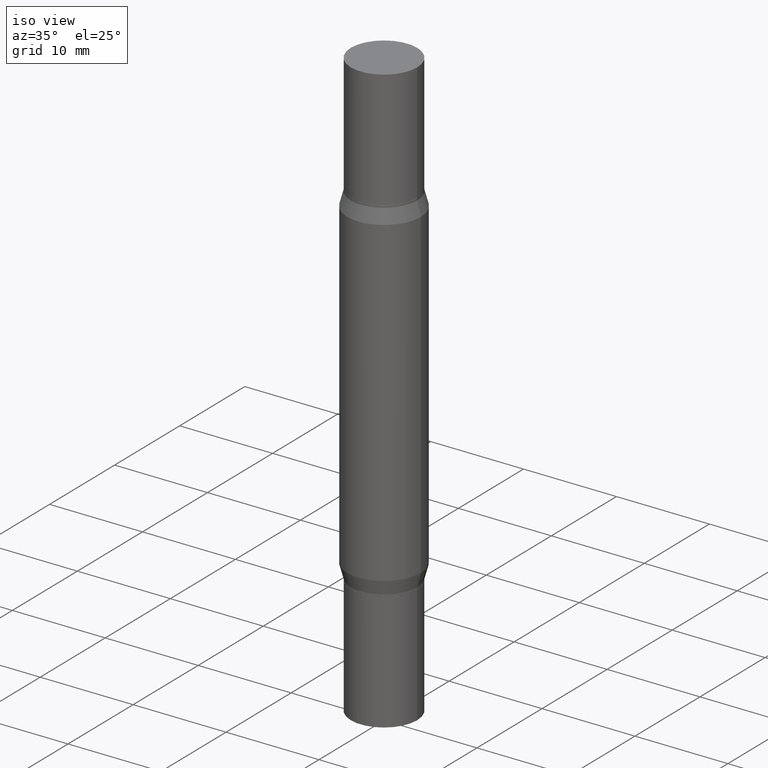
[diagram: clean part render]
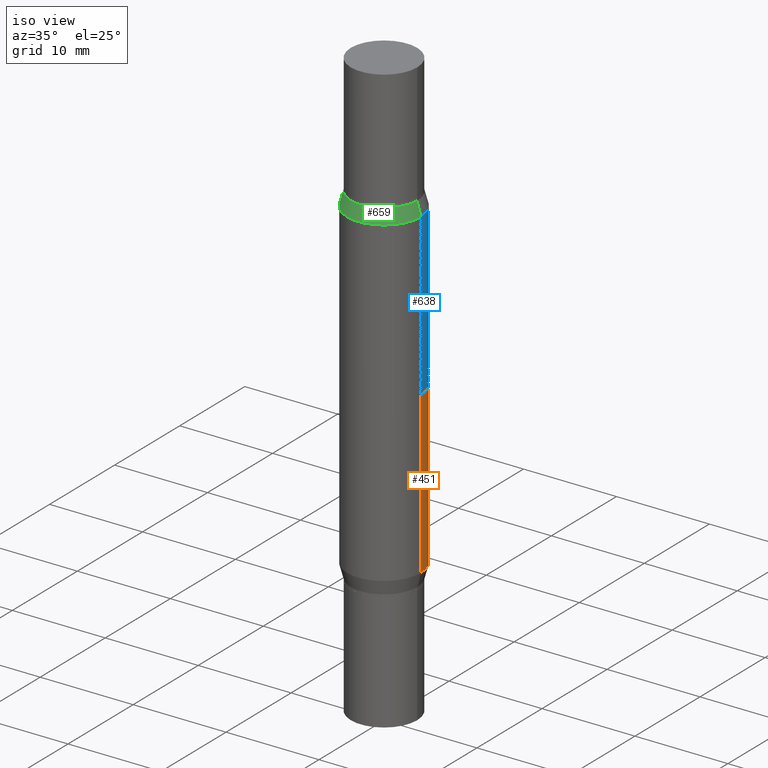
[diagram: same view with three faces highlighted in distinct colors, each labeled with its STEP entity id]
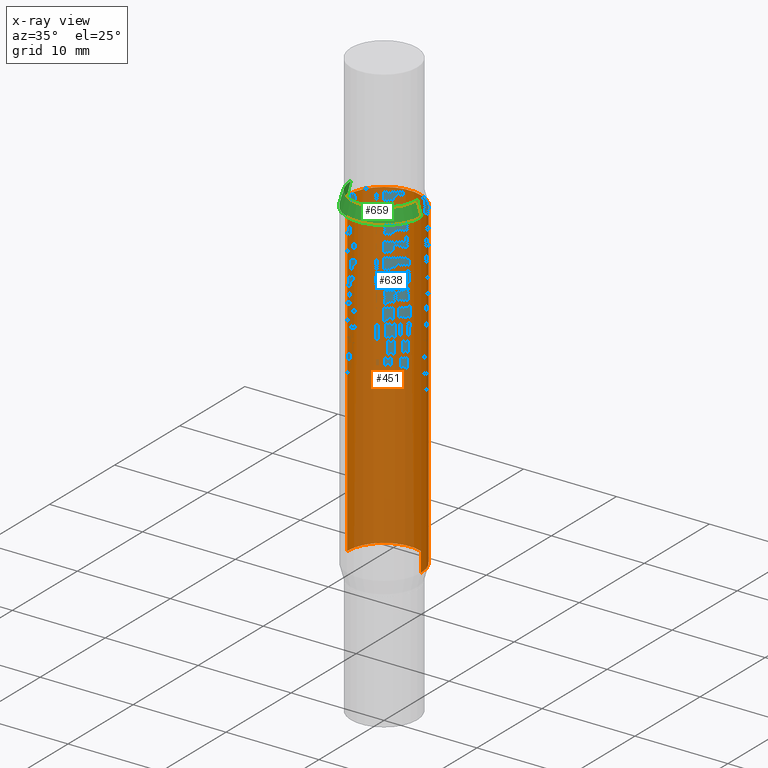
[diagram: x-ray of the same camera — body ghosted, the three highlighted faces saturated]
A machine part, iso view with three faces highlighted in distinct colors.
The next image is the same camera in x-ray (body ghosted, the three faces saturated) — at least one of them is partly hidden behind the body in this view.
Their STEP definitions:

[orange] entity #451 — the highlighted cylindrical surface (partial cylindrical patch) has radius 3.9688 mm, axis along (-0, -0, -1).
#14 = DIRECTION ( 'NONE',  ( 1.000000000000000000, -6.982962677686265133E-15, 0.000000000000000000 ) ) ;
#35 = VERTEX_POINT ( 'NONE', #98 ) ;
#66 = DIRECTION ( 'NONE',  ( -2.445468806185136877E-29, -3.491805094961123683E-15, -1.000000000000000000 ) ) ;
#98 = CARTESIAN_POINT ( 'NONE',  ( 0.1562500000000000000, -3.075448268154960667E-15, -0.5684065951384525972 ) ) ;
#105 = CIRCLE ( 'NONE', #228, 0.1562500000000000000 ) ;
#124 = AXIS2_PLACEMENT_3D ( 'NONE', #854, #567, #252 ) ;
#162 = CARTESIAN_POINT ( 'NONE',  ( 0.1562500000000000000, -7.835210245695063494E-15, -1.931593404861546848 ) ) ;
#164 = VERTEX_POINT ( 'NONE', #859 ) ;
#203 = VECTOR ( 'NONE', #66, 39.37007874015748143 ) ;
#228 = AXIS2_PLACEMENT_3D ( 'NONE', #385, #758, #766 ) ;
#252 = DIRECTION ( 'NONE',  ( 1.000000000000000000, -6.982962677686262766E-15, 0.000000000000000000 ) ) ;
#253 = VERTEX_POINT ( 'NONE', #162 ) ;
#294 = CARTESIAN_POINT ( 'NONE',  ( -0.1562500000000000000, -9.124075376146796868E-16, -0.5684065951384525972 ) ) ;
#301 = EDGE_CURVE ( 'NONE', #253, #164, #105, .T. ) ;
#312 = EDGE_CURVE ( 'NONE', #35, #812, #909, .T. ) ;
#323 = DIRECTION ( 'NONE',  ( 2.445468806185136597E-29, 3.491805094961124077E-15, 1.000000000000000000 ) ) ;
#329 = CYLINDRICAL_SURFACE ( 'NONE', #124, 0.1562500000000000000 ) ;
#330 = EDGE_LOOP ( 'NONE', ( #437, #887, #723, #563 ) ) ;
#339 = EDGE_CURVE ( 'NONE', #35, #253, #698, .T. ) ;
#385 = CARTESIAN_POINT ( 'NONE',  ( 4.723651417821850369E-29, -6.744122327306583531E-15, -1.931593404861546848 ) ) ;
#437 = ORIENTED_EDGE ( 'NONE', *, *, #819, .F. ) ;
#451 = ADVANCED_FACE ( 'NONE', ( #481 ), #329, .T. ) ;
#481 = FACE_OUTER_BOUND ( 'NONE', #330, .T. ) ;
#563 = ORIENTED_EDGE ( 'NONE', *, *, #301, .T. ) ;
#567 = DIRECTION ( 'NONE',  ( -2.445468806185136597E-29, -3.491805094961124077E-15, -1.000000000000000000 ) ) ;
#568 = VECTOR ( 'NONE', #917, 39.37007874015748143 ) ;
#599 = CARTESIAN_POINT ( 'NONE',  ( -0.1562500000000000000, -7.657155230103533296E-15, -2.499999999999999556 ) ) ;
#625 = CARTESIAN_POINT ( 'NONE',  ( 0.1562500000000000000, -9.820195960643813487E-15, -2.499999999999999556 ) ) ;
#698 = LINE ( 'NONE', #625, #568 ) ;
#723 = ORIENTED_EDGE ( 'NONE', *, *, #339, .T. ) ;
#747 = LINE ( 'NONE', #599, #203 ) ;
#758 = DIRECTION ( 'NONE',  ( -2.445468806185136597E-29, 3.491481338843145583E-15, 1.000000000000000000 ) ) ;
#766 = DIRECTION ( 'NONE',  ( 1.000000000000000000, -6.982962677686269077E-15, 0.000000000000000000 ) ) ;
#812 = VERTEX_POINT ( 'NONE', #294 ) ;
#819 = EDGE_CURVE ( 'NONE', #812, #164, #747, .T. ) ;
#832 = CARTESIAN_POINT ( 'NONE',  ( 4.723651417821850369E-29, -1.984360349766479521E-15, -0.5684065951384525972 ) ) ;
#854 = CARTESIAN_POINT ( 'NONE',  ( 0.000000000000000000, -8.729108042255335103E-15, -2.499999999999999556 ) ) ;
#859 = CARTESIAN_POINT ( 'NONE',  ( -0.1562500000000000000, -3.292398861402129087E-15, -1.931593404861546848 ) ) ;
#860 = AXIS2_PLACEMENT_3D ( 'NONE', #832, #323, #14 ) ;
#887 = ORIENTED_EDGE ( 'NONE', *, *, #312, .F. ) ;
#909 = CIRCLE ( 'NONE', #860, 0.1562500000000000000 ) ;
#917 = DIRECTION ( 'NONE',  ( -2.445468806185136877E-29, -3.491805094961123683E-15, -1.000000000000000000 ) ) ;

[blue] entity #638 — the highlighted cylindrical surface (partial cylindrical patch) has radius 3.9688 mm, axis along (-0, -0, -1).
#15 = DIRECTION ( 'NONE',  ( -2.445468806185136597E-29, -3.491805094961124077E-15, -1.000000000000000000 ) ) ;
#89 = CARTESIAN_POINT ( 'NONE',  ( 0.1562500000000000000, -9.820195960643813487E-15, -2.499999999999999556 ) ) ;
#147 = EDGE_LOOP ( 'NONE', ( #969, #349, #881, #761 ) ) ;
#185 = LINE ( 'NONE', #337, #797 ) ;
#190 = VERTEX_POINT ( 'NONE', #672 ) ;
#226 = FACE_OUTER_BOUND ( 'NONE', #147, .T. ) ;
#258 = AXIS2_PLACEMENT_3D ( 'NONE', #430, #775, #786 ) ;
#333 = EDGE_CURVE ( 'NONE', #787, #586, #542, .T. ) ;
#337 = CARTESIAN_POINT ( 'NONE',  ( -0.1562500000000000000, -7.657155230103533296E-15, -2.499999999999999556 ) ) ;
#341 = CIRCLE ( 'NONE', #843, 0.1562500000000000000 ) ;
#349 = ORIENTED_EDGE ( 'NONE', *, *, #505, .F. ) ;
#352 = DIRECTION ( 'NONE',  ( -2.445468806185136877E-29, -3.491805094961123683E-15, -1.000000000000000000 ) ) ;
#372 = EDGE_CURVE ( 'NONE', #190, #939, #185, .T. ) ;
#393 = CIRCLE ( 'NONE', #258, 0.1562500000000000000 ) ;
#394 = DIRECTION ( 'NONE',  ( -2.445468806185136877E-29, -3.491805094961123683E-15, -1.000000000000000000 ) ) ;
#406 = VECTOR ( 'NONE', #394, 39.37007874015748143 ) ;
#414 = EDGE_CURVE ( 'NONE', #939, #586, #393, .T. ) ;
#430 = CARTESIAN_POINT ( 'NONE',  ( 3.056836007731420185E-29, -4.364351673553931682E-15, -1.249999999999999778 ) ) ;
#497 = CARTESIAN_POINT ( 'NONE',  ( 4.723651417821850369E-29, -1.984360349766479521E-15, -0.5684065951384525972 ) ) ;
#505 = EDGE_CURVE ( 'NONE', #787, #190, #341, .T. ) ;
#542 = LINE ( 'NONE', #89, #406 ) ;
#586 = VERTEX_POINT ( 'NONE', #741 ) ;
#620 = CARTESIAN_POINT ( 'NONE',  ( 0.000000000000000000, -8.729108042255335103E-15, -2.499999999999999556 ) ) ;
#628 = DIRECTION ( 'NONE',  ( 1.000000000000000000, -6.982962677686262766E-15, 0.000000000000000000 ) ) ;
#638 = ADVANCED_FACE ( 'NONE', ( #226 ), #845, .T. ) ;
#652 = CARTESIAN_POINT ( 'NONE',  ( 0.1562500000000000000, -3.075448268154960667E-15, -0.5684065951384525972 ) ) ;
#657 = CARTESIAN_POINT ( 'NONE',  ( -0.1562500000000000000, -2.102403199508403006E-15, -1.249999999999999778 ) ) ;
#672 = CARTESIAN_POINT ( 'NONE',  ( -0.1562500000000000000, -9.124075376146796868E-16, -0.5684065951384525972 ) ) ;
#709 = AXIS2_PLACEMENT_3D ( 'NONE', #620, #15, #628 ) ;
#730 = DIRECTION ( 'NONE',  ( 1.000000000000000000, -6.982962677686265133E-15, 0.000000000000000000 ) ) ;
#741 = CARTESIAN_POINT ( 'NONE',  ( 0.1562500000000000000, -4.265443930048683987E-15, -1.249999999999999778 ) ) ;
#761 = ORIENTED_EDGE ( 'NONE', *, *, #414, .F. ) ;
#775 = DIRECTION ( 'NONE',  ( -0.000000000000000000, -3.491643216902134830E-15, -1.000000000000000000 ) ) ;
#786 = DIRECTION ( 'NONE',  ( 0.000000000000000000, 1.000000000000000000, -3.496765431890256920E-15 ) ) ;
#787 = VERTEX_POINT ( 'NONE', #652 ) ;
#791 = DIRECTION ( 'NONE',  ( 2.445468806185136597E-29, 3.491805094961124077E-15, 1.000000000000000000 ) ) ;
#797 = VECTOR ( 'NONE', #352, 39.37007874015748143 ) ;
#843 = AXIS2_PLACEMENT_3D ( 'NONE', #497, #791, #730 ) ;
#845 = CYLINDRICAL_SURFACE ( 'NONE', #709, 0.1562500000000000000 ) ;
#881 = ORIENTED_EDGE ( 'NONE', *, *, #333, .T. ) ;
#939 = VERTEX_POINT ( 'NONE', #657 ) ;
#969 = ORIENTED_EDGE ( 'NONE', *, *, #372, .F. ) ;

[green] entity #659 — the highlighted conical surface has half-angle 15 deg.
#13 = CARTESIAN_POINT ( 'NONE',  ( 4.723651417821850369E-29, -1.984360349766479521E-15, -0.5684065951384525972 ) ) ;
#17 = EDGE_CURVE ( 'NONE', #342, #190, #250, .T. ) ;
#30 = DIRECTION ( 'NONE',  ( 1.000000000000000000, -6.982962677686266711E-15, 0.000000000000000000 ) ) ;
#36 = VECTOR ( 'NONE', #927, 39.37007874015748143 ) ;
#47 = EDGE_CURVE ( 'NONE', #190, #787, #979, .T. ) ;
#155 = CIRCLE ( 'NONE', #551, 0.1405999999999998917 ) ;
#157 = VECTOR ( 'NONE', #206, 39.37007874015748143 ) ;
#168 = DIRECTION ( 'NONE',  ( 1.000000000000000000, -6.982962677686266711E-15, 0.000000000000000000 ) ) ;
#190 = VERTEX_POINT ( 'NONE', #672 ) ;
#206 = DIRECTION ( 'NONE',  ( 0.2588190451025215721, -5.180148453816008779E-15, -0.9659258262890679791 ) ) ;
#237 = DIRECTION ( 'NONE',  ( 2.445468806185136597E-29, 3.491805094961124077E-15, 1.000000000000000000 ) ) ;
#250 = LINE ( 'NONE', #332, #36 ) ;
#311 = AXIS2_PLACEMENT_3D ( 'NONE', #13, #237, #396 ) ;
#332 = CARTESIAN_POINT ( 'NONE',  ( -0.1405999999999998917, -8.158298847960224676E-16, -0.5099999999999994538 ) ) ;
#342 = VERTEX_POINT ( 'NONE', #545 ) ;
#381 = VERTEX_POINT ( 'NONE', #573 ) ;
#396 = DIRECTION ( 'NONE',  ( 1.000000000000000000, -6.982962677686265133E-15, 0.000000000000000000 ) ) ;
#401 = EDGE_CURVE ( 'NONE', #342, #381, #155, .T. ) ;
#472 = DIRECTION ( 'NONE',  ( -2.445468806185136597E-29, -3.491805094961124077E-15, -1.000000000000000000 ) ) ;
#545 = CARTESIAN_POINT ( 'NONE',  ( -0.1405999999999998917, -7.992438105949555922E-16, -0.5099999999999994538 ) ) ;
#551 = AXIS2_PLACEMENT_3D ( 'NONE', #862, #639, #30 ) ;
#573 = CARTESIAN_POINT ( 'NONE',  ( 0.1405999999999998917, -2.762220455765387228E-15, -0.5099999999999994538 ) ) ;
#581 = EDGE_LOOP ( 'NONE', ( #856, #803, #799, #769 ) ) ;
#583 = LINE ( 'NONE', #888, #157 ) ;
#639 = DIRECTION ( 'NONE',  ( 2.445468806185136597E-29, 3.491805094961124077E-15, 1.000000000000000000 ) ) ;
#652 = CARTESIAN_POINT ( 'NONE',  ( 0.1562500000000000000, -3.075448268154960667E-15, -0.5684065951384525972 ) ) ;
#659 = ADVANCED_FACE ( 'NONE', ( #836 ), #883, .T. ) ;
#672 = CARTESIAN_POINT ( 'NONE',  ( -0.1562500000000000000, -9.124075376146796868E-16, -0.5684065951384525972 ) ) ;
#769 = ORIENTED_EDGE ( 'NONE', *, *, #919, .F. ) ;
#787 = VERTEX_POINT ( 'NONE', #652 ) ;
#799 = ORIENTED_EDGE ( 'NONE', *, *, #47, .T. ) ;
#803 = ORIENTED_EDGE ( 'NONE', *, *, #17, .T. ) ;
#836 = FACE_OUTER_BOUND ( 'NONE', #581, .T. ) ;
#856 = ORIENTED_EDGE ( 'NONE', *, *, #401, .F. ) ;
#862 = CARTESIAN_POINT ( 'NONE',  ( 4.866482924308422209E-29, -1.780415903282698911E-15, -0.5099999999999994538 ) ) ;
#883 = CONICAL_SURFACE ( 'NONE', #964, 0.1405999999999998917, 0.2617993877991502960 ) ;
#888 = CARTESIAN_POINT ( 'NONE',  ( 0.1405999999999998917, -2.762220455765387228E-15, -0.5099999999999994538 ) ) ;
#919 = EDGE_CURVE ( 'NONE', #381, #787, #583, .T. ) ;
#920 = CARTESIAN_POINT ( 'NONE',  ( 4.866482924308422209E-29, -1.780415903282698911E-15, -0.5099999999999994538 ) ) ;
#927 = DIRECTION ( 'NONE',  ( -0.2588190451025215721, -1.597197180879712551E-15, -0.9659258262890679791 ) ) ;
#964 = AXIS2_PLACEMENT_3D ( 'NONE', #920, #472, #168 ) ;
#979 = CIRCLE ( 'NONE', #311, 0.1562500000000000000 ) ;